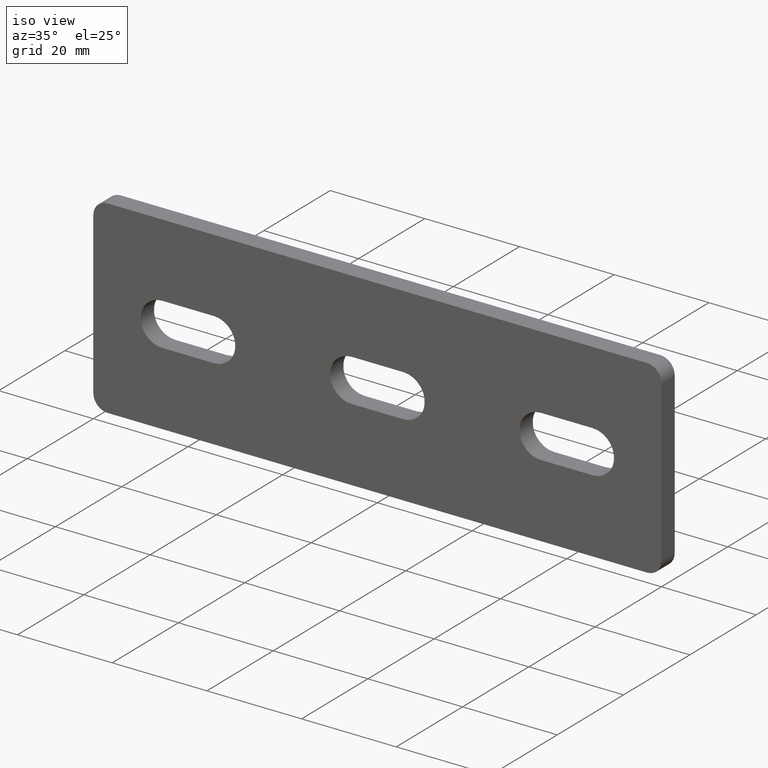
[diagram: clean part render]
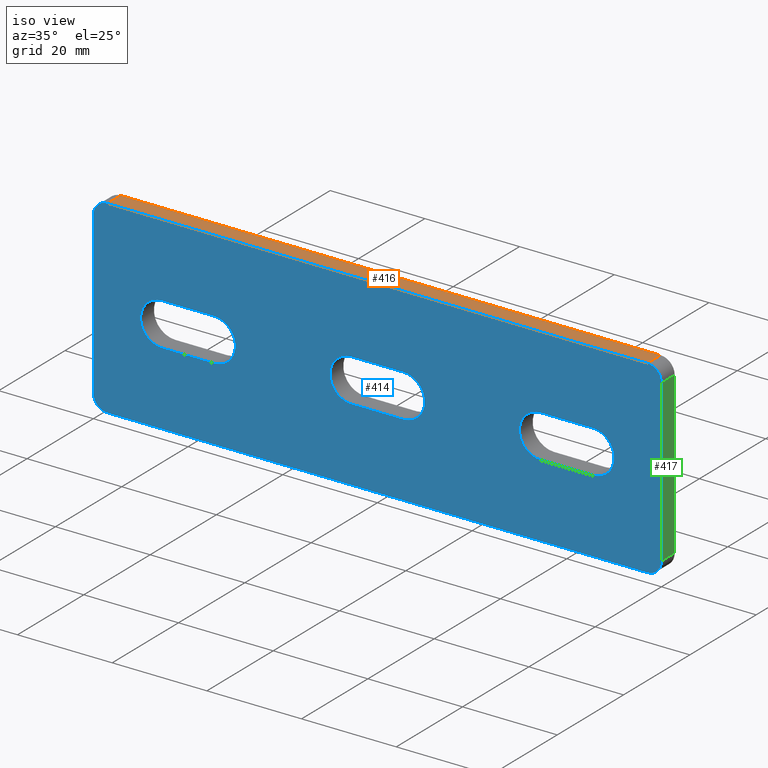
[diagram: same view with three faces highlighted in distinct colors, each labeled with its STEP entity id]
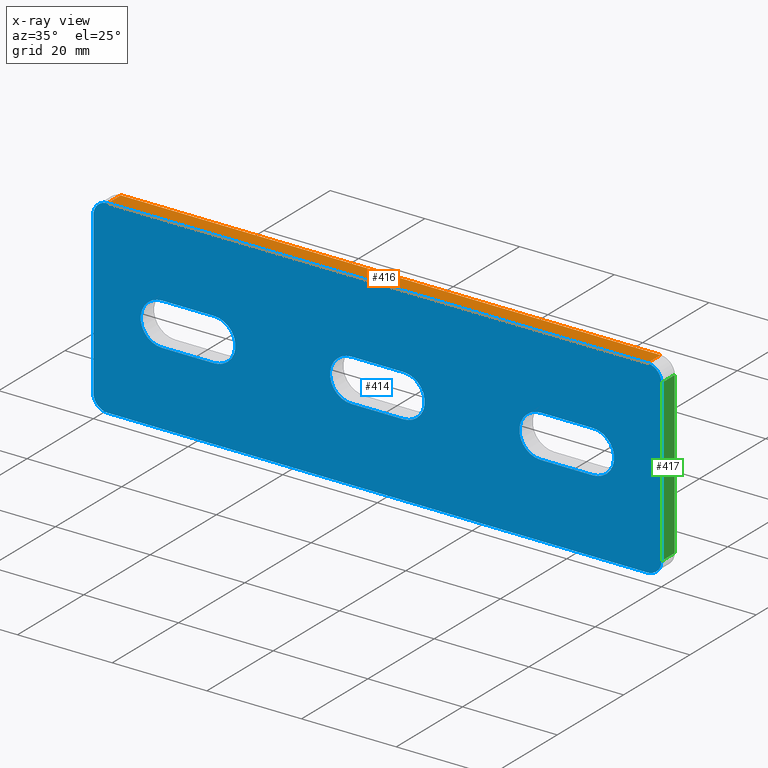
[diagram: x-ray of the same camera — body ghosted, the three highlighted faces saturated]
A machine part, iso view with three faces highlighted in distinct colors.
The next image is the same camera in x-ray (body ghosted, the three faces saturated) — at least one of them is partly hidden behind the body in this view.
Their STEP definitions:

[orange] entity #416 — the highlighted planar face has unit normal (-0, -0, -1).
#34=FACE_OUTER_BOUND('',#62,.T.);
#62=EDGE_LOOP('',(#325,#326,#327,#328));
#103=LINE('',#638,#143);
#114=LINE('',#683,#154);
#123=LINE('',#713,#163);
#124=LINE('',#714,#164);
#143=VECTOR('',#510,1000.);
#154=VECTOR('',#545,1000.);
#163=VECTOR('',#572,1000.);
#164=VECTOR('',#573,1000.);
#185=VERTEX_POINT('',#635);
#186=VERTEX_POINT('',#637);
#207=VERTEX_POINT('',#680);
#208=VERTEX_POINT('',#682);
#225=EDGE_CURVE('',#185,#186,#103,.T.);
#247=EDGE_CURVE('',#208,#207,#114,.T.);
#263=EDGE_CURVE('',#207,#186,#123,.T.);
#264=EDGE_CURVE('',#185,#208,#124,.T.);
#325=ORIENTED_EDGE('',*,*,#247,.T.);
#326=ORIENTED_EDGE('',*,*,#263,.T.);
#327=ORIENTED_EDGE('',*,*,#225,.F.);
#328=ORIENTED_EDGE('',*,*,#264,.T.);
#404=PLANE('',#481);
#416=ADVANCED_FACE('',(#34),#404,.F.);
#481=AXIS2_PLACEMENT_3D('',#712,#570,#571);
#510=DIRECTION('',(1.,4.93038065763132E-31,-4.93038065763132E-32));
#545=DIRECTION('',(1.,4.93038065763132E-31,-4.93038065763132E-32));
#570=DIRECTION('center_axis',(-4.93038065763132E-32,-2.43086534291451E-62,
-1.));
#571=DIRECTION('ref_axis',(-1.,-4.93038065763132E-31,4.93038065763132E-32));
#572=DIRECTION('',(5.66993775627602E-31,1.,0.));
#573=DIRECTION('',(-5.66993775627602E-31,-1.,0.));
#635=CARTESIAN_POINT('',(-56.9999999999986,4.,20.));
#637=CARTESIAN_POINT('',(56.9999999999986,3.99999999999978,20.));
#638=CARTESIAN_POINT('',(-59.9999999999987,4.,20.));
#680=CARTESIAN_POINT('',(56.9999999999986,-2.22044604925031E-13,20.));
#682=CARTESIAN_POINT('',(-56.9999999999986,0.,19.9999999999998));
#683=CARTESIAN_POINT('',(-59.9999999999987,0.,19.9999999999998));
#712=CARTESIAN_POINT('Origin',(-59.9999999999987,4.,20.));
#713=CARTESIAN_POINT('',(56.9999999999986,3.99999999999978,20.));
#714=CARTESIAN_POINT('',(-56.9999999999986,4.,20.));

[blue] entity #414 — the highlighted planar face has unit normal (-0, -1, 0).
#28=FACE_BOUND('',#58,.T.);
#29=FACE_BOUND('',#59,.T.);
#30=FACE_BOUND('',#60,.T.);
#32=FACE_OUTER_BOUND('',#57,.T.);
#57=EDGE_LOOP('',(#301,#302,#303,#304,#305,#306,#307,#308));
#58=EDGE_LOOP('',(#309,#310,#311,#312));
#59=EDGE_LOOP('',(#313,#314,#315,#316));
#60=EDGE_LOOP('',(#317,#318,#319,#320));
#91=CIRCLE('',#470,3.);
#92=CIRCLE('',#471,3.);
#93=CIRCLE('',#472,3.);
#94=CIRCLE('',#473,3.);
#95=CIRCLE('',#474,4.5);
#96=CIRCLE('',#475,4.5);
#97=CIRCLE('',#476,4.50000000000001);
#98=CIRCLE('',#477,4.50000000000001);
#99=CIRCLE('',#478,4.5);
#100=CIRCLE('',#479,4.5);
#111=LINE('',#671,#151);
#112=LINE('',#675,#152);
#113=LINE('',#679,#153);
#114=LINE('',#683,#154);
#115=LINE('',#687,#155);
#116=LINE('',#691,#156);
#117=LINE('',#695,#157);
#118=LINE('',#699,#158);
#119=LINE('',#703,#159);
#120=LINE('',#707,#160);
#151=VECTOR('',#536,1000.);
#152=VECTOR('',#539,1000.);
#153=VECTOR('',#542,1000.);
#154=VECTOR('',#545,1000.);
#155=VECTOR('',#548,1000.);
#156=VECTOR('',#551,1000.);
#157=VECTOR('',#554,1000.);
#158=VECTOR('',#557,1000.);
#159=VECTOR('',#560,1000.);
#160=VECTOR('',#563,1000.);
#201=VERTEX_POINT('',#669);
#202=VERTEX_POINT('',#670);
#203=VERTEX_POINT('',#672);
#204=VERTEX_POINT('',#674);
#205=VERTEX_POINT('',#676);
#206=VERTEX_POINT('',#678);
#207=VERTEX_POINT('',#680);
#208=VERTEX_POINT('',#682);
#209=VERTEX_POINT('',#685);
#210=VERTEX_POINT('',#686);
#211=VERTEX_POINT('',#688);
#212=VERTEX_POINT('',#690);
#213=VERTEX_POINT('',#693);
#214=VERTEX_POINT('',#694);
#215=VERTEX_POINT('',#696);
#216=VERTEX_POINT('',#698);
#217=VERTEX_POINT('',#701);
#218=VERTEX_POINT('',#702);
#219=VERTEX_POINT('',#704);
#220=VERTEX_POINT('',#706);
#241=EDGE_CURVE('',#201,#202,#111,.T.);
#242=EDGE_CURVE('',#201,#203,#91,.T.);
#243=EDGE_CURVE('',#204,#203,#112,.T.);
#244=EDGE_CURVE('',#204,#205,#92,.T.);
#245=EDGE_CURVE('',#206,#205,#113,.T.);
#246=EDGE_CURVE('',#206,#207,#93,.T.);
#247=EDGE_CURVE('',#208,#207,#114,.T.);
#248=EDGE_CURVE('',#208,#202,#94,.T.);
#249=EDGE_CURVE('',#209,#210,#115,.T.);
#250=EDGE_CURVE('',#210,#211,#95,.T.);
#251=EDGE_CURVE('',#211,#212,#116,.T.);
#252=EDGE_CURVE('',#212,#209,#96,.T.);
#253=EDGE_CURVE('',#213,#214,#117,.T.);
#254=EDGE_CURVE('',#214,#215,#97,.T.);
#255=EDGE_CURVE('',#215,#216,#118,.T.);
#256=EDGE_CURVE('',#216,#213,#98,.T.);
#257=EDGE_CURVE('',#217,#218,#119,.T.);
#258=EDGE_CURVE('',#218,#219,#99,.T.);
#259=EDGE_CURVE('',#219,#220,#120,.T.);
#260=EDGE_CURVE('',#220,#217,#100,.T.);
#301=ORIENTED_EDGE('',*,*,#241,.F.);
#302=ORIENTED_EDGE('',*,*,#242,.T.);
#303=ORIENTED_EDGE('',*,*,#243,.F.);
#304=ORIENTED_EDGE('',*,*,#244,.T.);
#305=ORIENTED_EDGE('',*,*,#245,.F.);
#306=ORIENTED_EDGE('',*,*,#246,.T.);
#307=ORIENTED_EDGE('',*,*,#247,.F.);
#308=ORIENTED_EDGE('',*,*,#248,.T.);
#309=ORIENTED_EDGE('',*,*,#249,.T.);
#310=ORIENTED_EDGE('',*,*,#250,.T.);
#311=ORIENTED_EDGE('',*,*,#251,.T.);
#312=ORIENTED_EDGE('',*,*,#252,.T.);
#313=ORIENTED_EDGE('',*,*,#253,.T.);
#314=ORIENTED_EDGE('',*,*,#254,.T.);
#315=ORIENTED_EDGE('',*,*,#255,.T.);
#316=ORIENTED_EDGE('',*,*,#256,.T.);
#317=ORIENTED_EDGE('',*,*,#257,.T.);
#318=ORIENTED_EDGE('',*,*,#258,.T.);
#319=ORIENTED_EDGE('',*,*,#259,.T.);
#320=ORIENTED_EDGE('',*,*,#260,.T.);
#402=PLANE('',#469);
#414=ADVANCED_FACE('',(#32,#28,#29,#30),#402,.T.);
#469=AXIS2_PLACEMENT_3D('',#668,#534,#535);
#470=AXIS2_PLACEMENT_3D('',#673,#537,#538);
#471=AXIS2_PLACEMENT_3D('',#677,#540,#541);
#472=AXIS2_PLACEMENT_3D('',#681,#543,#544);
#473=AXIS2_PLACEMENT_3D('',#684,#546,#547);
#474=AXIS2_PLACEMENT_3D('',#689,#549,#550);
#475=AXIS2_PLACEMENT_3D('',#692,#552,#553);
#476=AXIS2_PLACEMENT_3D('',#697,#555,#556);
#477=AXIS2_PLACEMENT_3D('',#700,#558,#559);
#478=AXIS2_PLACEMENT_3D('',#705,#561,#562);
#479=AXIS2_PLACEMENT_3D('',#708,#564,#565);
#534=DIRECTION('center_axis',(-5.66993775627602E-31,-1.,0.));
#535=DIRECTION('ref_axis',(0.,0.,-1.));
#536=DIRECTION('',(0.,0.,1.));
#537=DIRECTION('center_axis',(-5.66993775627602E-31,-1.,0.));
#538=DIRECTION('ref_axis',(0.,0.,-1.));
#539=DIRECTION('',(-1.,-4.93038065763132E-31,4.93038065763132E-32));
#540=DIRECTION('center_axis',(-5.66993775627602E-31,-1.,0.));
#541=DIRECTION('ref_axis',(0.,0.,-1.));
#542=DIRECTION('',(0.,0.,-1.));
#543=DIRECTION('center_axis',(-5.66993775627602E-31,-1.,0.));
#544=DIRECTION('ref_axis',(0.,0.,-1.));
#545=DIRECTION('',(1.,4.93038065763132E-31,-4.93038065763132E-32));
#546=DIRECTION('center_axis',(-5.66993775627602E-31,-1.,0.));
#547=DIRECTION('ref_axis',(0.,0.,-1.));
#548=DIRECTION('',(1.,4.93038065763132E-31,-4.93038065763132E-32));
#549=DIRECTION('center_axis',(5.66993775627602E-31,1.,0.));
#550=DIRECTION('ref_axis',(0.,0.,1.));
#551=DIRECTION('',(-1.,-4.93038065763132E-31,4.93038065763132E-32));
#552=DIRECTION('center_axis',(5.66993775627602E-31,1.,0.));
#553=DIRECTION('ref_axis',(0.,0.,1.));
#554=DIRECTION('',(1.,4.93038065763132E-31,-4.93038065763132E-32));
#555=DIRECTION('center_axis',(5.66993775627602E-31,1.,0.));
#556=DIRECTION('ref_axis',(0.,0.,1.));
#557=DIRECTION('',(-1.,-4.93038065763132E-31,4.93038065763132E-32));
#558=DIRECTION('center_axis',(5.66993775627602E-31,1.,0.));
#559=DIRECTION('ref_axis',(0.,0.,1.));
#560=DIRECTION('',(-1.,-4.93038065763132E-31,4.93038065763132E-32));
#561=DIRECTION('center_axis',(5.66993775627602E-31,1.,0.));
#562=DIRECTION('ref_axis',(0.,0.,-1.));
#563=DIRECTION('',(1.,4.93038065763132E-31,-4.93038065763132E-32));
#564=DIRECTION('center_axis',(5.66993775627602E-31,1.,0.));
#565=DIRECTION('ref_axis',(0.,0.,-1.));
#668=CARTESIAN_POINT('Origin',(-59.9999999999987,0.,-20.));
#669=CARTESIAN_POINT('',(-59.9999999999987,0.,-16.9999999999999));
#670=CARTESIAN_POINT('',(-59.9999999999987,-4.44089209850063E-13,16.9999999999992));
#671=CARTESIAN_POINT('',(-59.9999999999987,0.,19.9999999999998));
#672=CARTESIAN_POINT('',(-56.9999999999986,0.,-20.0000000000002));
#673=CARTESIAN_POINT('Origin',(-56.9999999999986,-4.44089209850063E-13,
-17.0000000000006));
#674=CARTESIAN_POINT('',(56.9999999999986,-2.22044604925031E-13,-20.0000000000005));
#675=CARTESIAN_POINT('',(-59.9999999999987,0.,-20.));
#676=CARTESIAN_POINT('',(59.9999999999987,0.,-17.0000000000001));
#677=CARTESIAN_POINT('Origin',(56.9999999999986,0.,-17.0000000000001));
#678=CARTESIAN_POINT('',(59.9999999999987,-2.22044604925031E-13,16.9999999999995));
#679=CARTESIAN_POINT('',(59.9999999999987,-2.22044604925031E-13,20.));
#680=CARTESIAN_POINT('',(56.9999999999986,-2.22044604925031E-13,20.));
#681=CARTESIAN_POINT('Origin',(56.9999999999986,0.,16.9999999999997));
#682=CARTESIAN_POINT('',(-56.9999999999986,0.,19.9999999999998));
#683=CARTESIAN_POINT('',(-59.9999999999987,0.,19.9999999999998));
#684=CARTESIAN_POINT('Origin',(-56.9999999999986,-4.44089209850063E-13,
16.9999999999992));
#685=CARTESIAN_POINT('',(-45.5000000000005,0.,4.49999999999928));
#686=CARTESIAN_POINT('',(-34.5000000000013,0.,4.49999999999928));
#687=CARTESIAN_POINT('',(-45.5000000000005,0.,4.49999999999928));
#688=CARTESIAN_POINT('',(-34.5000000000013,0.,-4.50000000000017));
#689=CARTESIAN_POINT('Origin',(-34.5000000000013,0.,0.));
#690=CARTESIAN_POINT('',(-45.5000000000005,0.,-4.50000000000017));
#691=CARTESIAN_POINT('',(-34.5000000000013,0.,-4.50000000000017));
#692=CARTESIAN_POINT('Origin',(-45.5000000000005,0.,0.));
#693=CARTESIAN_POINT('',(-5.50000000000139,4.44089209850063E-13,4.4999999999995));
#694=CARTESIAN_POINT('',(5.50000000000139,4.44089209850063E-13,4.4999999999995));
#695=CARTESIAN_POINT('',(-5.50000000000139,4.44089209850063E-13,4.4999999999995));
#696=CARTESIAN_POINT('',(5.50000000000139,0.,-4.50000000000017));
#697=CARTESIAN_POINT('Origin',(5.50000000000139,0.,0.));
#698=CARTESIAN_POINT('',(-5.50000000000139,0.,-4.50000000000017));
#699=CARTESIAN_POINT('',(5.50000000000139,0.,-4.50000000000017));
#700=CARTESIAN_POINT('Origin',(-5.50000000000139,0.,0.));
#701=CARTESIAN_POINT('',(45.5000000000005,4.44089209850063E-13,-4.50000000000039));
#702=CARTESIAN_POINT('',(34.5000000000013,2.22044604925031E-13,-4.50000000000061));
#703=CARTESIAN_POINT('',(34.5000000000013,2.22044604925031E-13,-4.50000000000061));
#704=CARTESIAN_POINT('',(34.5000000000013,4.44089209850063E-13,4.4999999999995));
#705=CARTESIAN_POINT('Origin',(34.5000000000013,0.,0.));
#706=CARTESIAN_POINT('',(45.5000000000005,4.44089209850063E-13,4.4999999999995));
#707=CARTESIAN_POINT('',(45.5000000000005,4.44089209850063E-13,4.4999999999995));
#708=CARTESIAN_POINT('Origin',(45.5000000000005,0.,0.));

[green] entity #417 — the highlighted planar face has unit normal (-1, -0, 0).
#35=FACE_OUTER_BOUND('',#63,.T.);
#63=EDGE_LOOP('',(#329,#330,#331,#332));
#104=LINE('',#642,#144);
#113=LINE('',#679,#153);
#125=LINE('',#716,#165);
#126=LINE('',#717,#166);
#144=VECTOR('',#513,1000.);
#153=VECTOR('',#542,1000.);
#165=VECTOR('',#576,1000.);
#166=VECTOR('',#577,1000.);
#187=VERTEX_POINT('',#639);
#188=VERTEX_POINT('',#641);
#205=VERTEX_POINT('',#676);
#206=VERTEX_POINT('',#678);
#227=EDGE_CURVE('',#187,#188,#104,.T.);
#245=EDGE_CURVE('',#206,#205,#113,.T.);
#265=EDGE_CURVE('',#205,#188,#125,.T.);
#266=EDGE_CURVE('',#187,#206,#126,.T.);
#329=ORIENTED_EDGE('',*,*,#245,.T.);
#330=ORIENTED_EDGE('',*,*,#265,.T.);
#331=ORIENTED_EDGE('',*,*,#227,.F.);
#332=ORIENTED_EDGE('',*,*,#266,.T.);
#405=PLANE('',#482);
#417=ADVANCED_FACE('',(#35),#405,.F.);
#482=AXIS2_PLACEMENT_3D('',#715,#574,#575);
#513=DIRECTION('',(0.,0.,-1.));
#542=DIRECTION('',(0.,0.,-1.));
#574=DIRECTION('center_axis',(-1.,-4.93038065763132E-31,0.));
#575=DIRECTION('ref_axis',(0.,0.,1.));
#576=DIRECTION('',(5.66993775627602E-31,1.,0.));
#577=DIRECTION('',(-5.66993775627602E-31,-1.,0.));
#639=CARTESIAN_POINT('',(59.9999999999987,3.99999999999978,16.9999999999999));
#641=CARTESIAN_POINT('',(59.9999999999987,3.99999999999978,-17.0000000000001));
#642=CARTESIAN_POINT('',(59.9999999999987,3.99999999999978,20.));
#676=CARTESIAN_POINT('',(59.9999999999987,0.,-17.0000000000001));
#678=CARTESIAN_POINT('',(59.9999999999987,-2.22044604925031E-13,16.9999999999995));
#679=CARTESIAN_POINT('',(59.9999999999987,-2.22044604925031E-13,20.));
#715=CARTESIAN_POINT('Origin',(59.9999999999987,3.99999999999978,20.));
#716=CARTESIAN_POINT('',(59.9999999999987,3.99999999999978,-17.0000000000001));
#717=CARTESIAN_POINT('',(59.9999999999987,3.99999999999978,16.9999999999999));